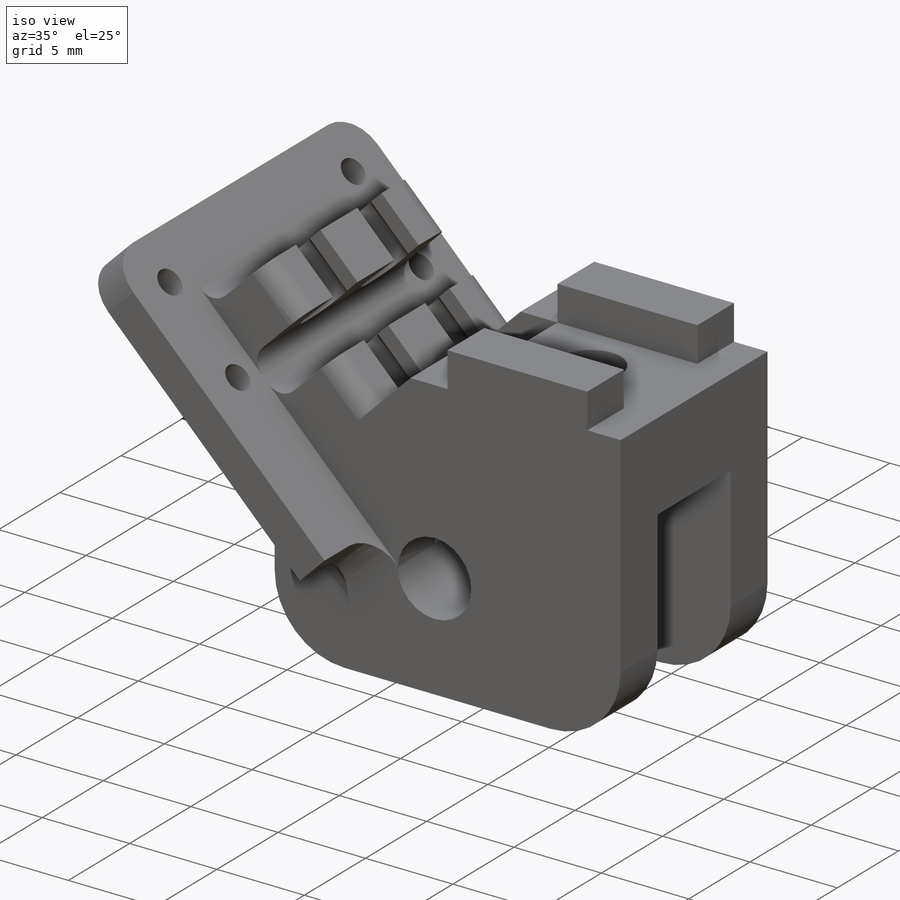
[diagram: iso view]
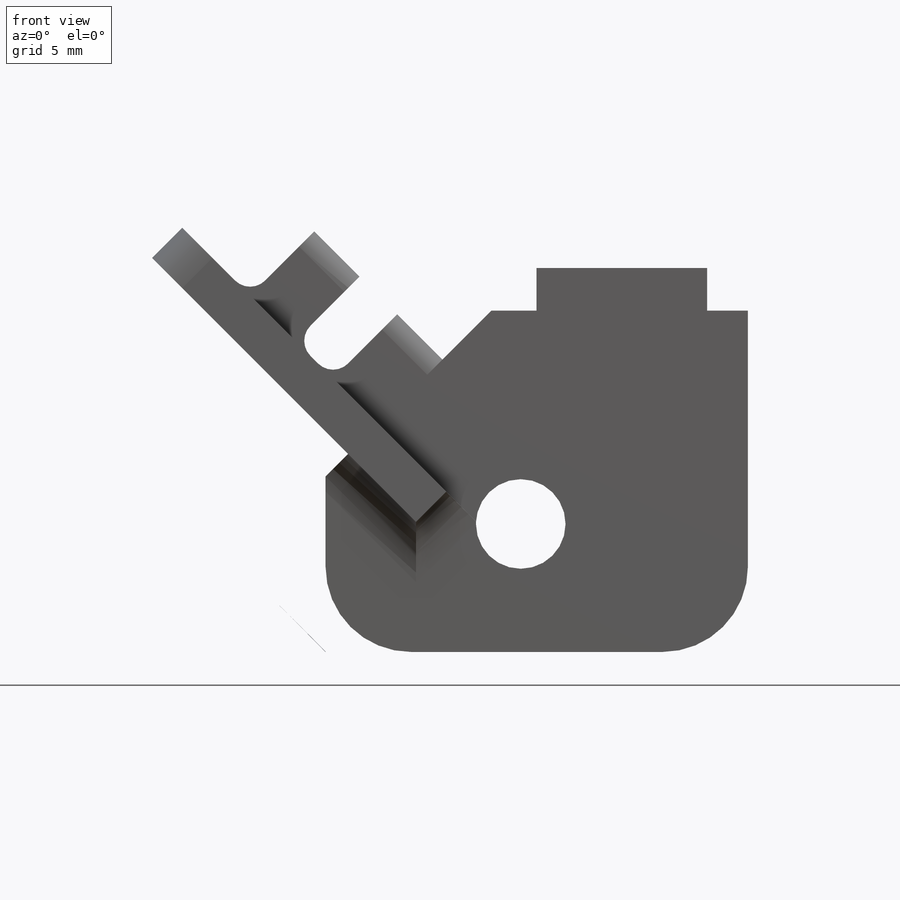
[diagram: front view]
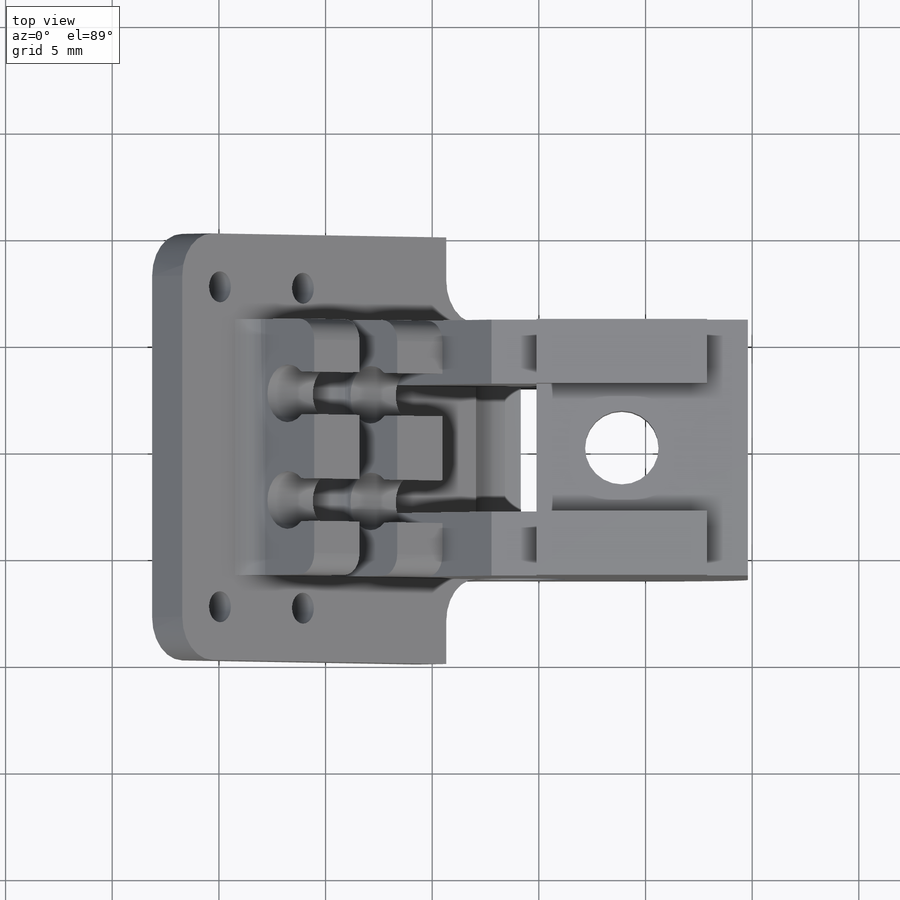
[diagram: top view]
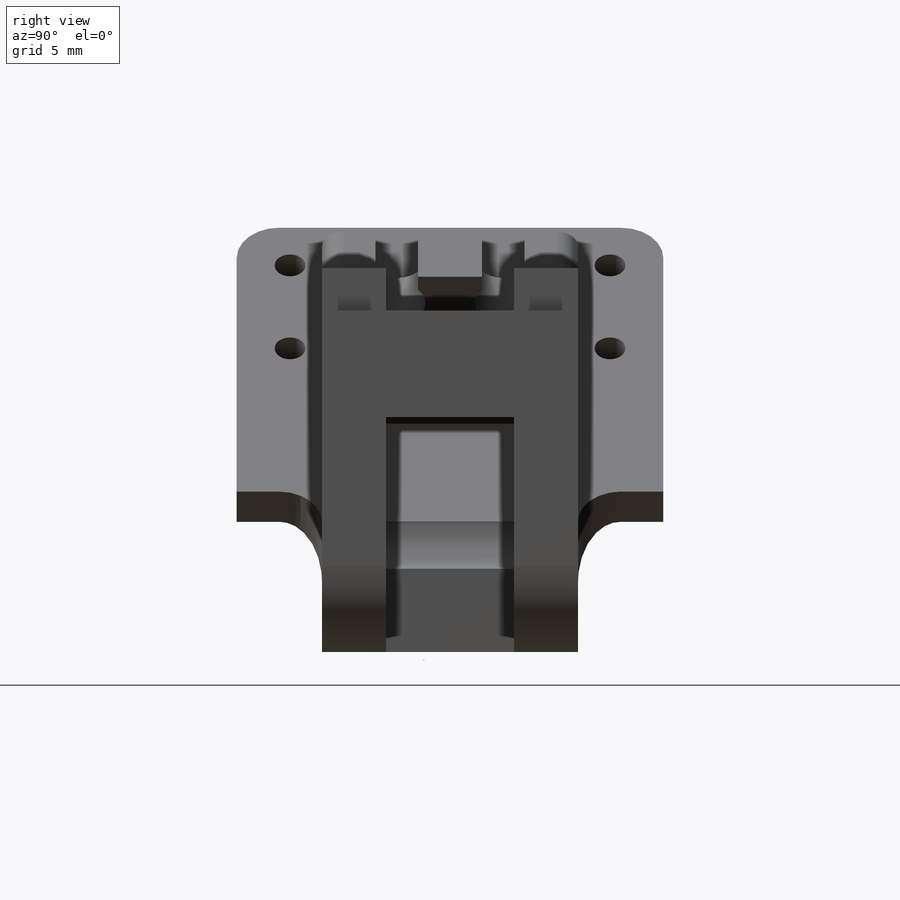
[diagram: right view]
SOLIDWORKS PART (.sldprt)
format: sldprt  version: not decoded by parser v0  size: 541,184 bytes
history: native  units: mm
features: sketch x9, cut_extrude x5, extrude x4, material x1, fillet x1 (+12 scaffold rows collapsed)
feature tree (32):
  scaffold x12  (default folders/planes/origin — collapsed)
  material  "ABS"
  sketch  "Sketch1"  dims[c1.D1=3.0mm c1.D2=4.0mm c1.D3=3.0mm c2.D1=12.0mm c2.D2=9.6mm c2.D5=3.0mm c2.D6=3.0mm c2.D7=4.0mm c2.D8=3.0mm c2.D15=4.0mm c3.D2=4.2mm c3.D1=~20.59111mm c4.D2=~25.156854mm c4.D3=16.19mm c4.D4=7.0mm c4.D5=~6.082416mm c4.D9=16.0mm c4.D10=26.0mm c4.D11=2.0mm c4.D12=8.0mm c4.D13=5.0mm c4.D6=~7.875536mm c5.D6=~46.612247deg c6.D6=~4.746758mm c7.D6=~140.552108deg c8.D6=25.0mm c9.D6=15.0deg c9.D7=15.0mm c9.D8=4.0mm c10.D6=~6.721209mm c11.D6=45.0deg c11.D3=11.0mm c11.D7=6.0mm c11.D8=7.0mm c11.D13=~10.382381mm c12.D7=6.0mm c12.D13=~4.569818mm c12.D10=4.2mm c13.D13=~19.841364mm c13.D10=19.8mm c14.D13=5.0mm c14.D14=10.0mm c14.D16=9.0mm c14.D4=6.0mm c14.D5=~9.292893mm]
  extrude  "Finger Base 1"  Depth=12mm
  sketch  "Sketch2"  dims[c1.D1=2.0mm c1.D2=20.0mm c1.D3=4.0mm c1.D4=3.0mm c2.D3=4.0mm c2.D4=1.0mm c3.D3=2.5mm c3.D4=20.0mm]
  extrude  "Flexure Joint Base"  Depth=13mm
  sketch  "Sketch3"  dims[c1.D4=13.0mm c1.D5=12.0mm c1.D1=3.0mm c1.D2=10.0mm c1.D3=5.0mm c2.D4=3.0mm c2.D5=1.0mm c3.D4=4.5mm c3.D6=4.2mm c3.D5=~15.910913mm]
  cut_extrude  "Pulley Housing"  Depth=6mm
  sketch  "Sketch4"  dims[D1=5.7mm D2=4.0mm]
  cut_extrude  "M3 Nut"  Depth=2mm
  sketch  "Sketch5"  dims[c1.D1=3.0mm c1.D2=3.45mm c2.D1=4.0mm]
  cut_extrude  "M3 Hole"  [1 undecoded]
  sketch  "Sketch9"
  extrude  "Support Flexure Joint Base "  Depth=4.5mm
  sketch  "Sketch10"  dims[D4=1.45mm D1=2.5mm D2=2.5mm D3=8.0mm]
  cut_extrude  "Hole For Stiching"  [1 undecoded]
  sketch  "Sketch11"  dims[c1.D1=3.0mm c1.D2=4.0mm c1.D3=13.0mm c2.D1=12.0mm c2.D2=4.5mm c2.D3=3.0mm c2.D4=12.0mm]
  extrude  "Tube Plate"  Depth=4.25mm
  sketch  "Sketch12"  dims[c1.D4=2.7mm c1.D1=~3.36726mm c1.D2=5.25mm c1.D3=2.0mm c1.D5=1.0mm c2.D1=2.5mm c2.D5=2.0mm c2.D2=1.0mm c3.D5=12.0mm c3.D1=3.5mm c3.D2=1.75mm]
  cut_extrude  "Tube Housing"  [1 undecoded]
  fillet  "Finger Base Contouring"  Radius=1mm
decode coverage: 15 of 19 modeling features carry decoded parameters
note: ~ marks probable driven/reference dimensions
note: 3 parameter values undecoded
summary: no parameter record found for 3 features
note: suppression state not decoded; provenance and decode notes live in map.json
